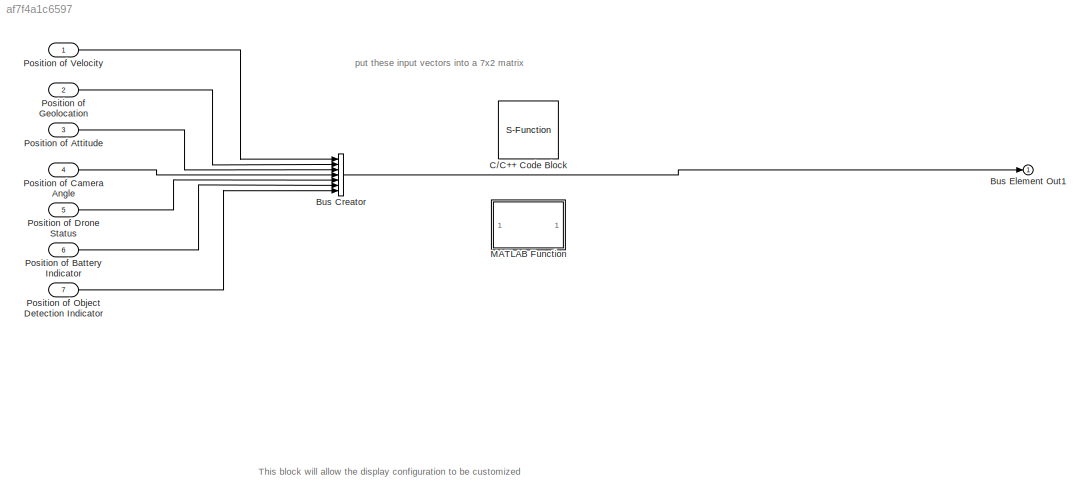
MODEL slx_af7f4a1c6597
KIND model
CONFIG AbsTol = auto
CONFIG EnableMultiTasking = off
CONFIG FixedStep = auto
CONFIG MaxStep = auto
CONFIG MinStep = auto
CONFIG RelTol = 1e-3
CONFIG SampleTimeConstraint = Unconstrained
CONFIG SolverName = VariableStepAuto
CONFIG StartTime = 0.0
CONFIG StopTime = 10.0
BLOCK [BusCreator] Bus Creator
  DisplayOption = bar
  InheritFromInputs = on
  Inputs = 7
  Ports = [7, 1]
BLOCK [Outport] Bus Element Out1
BLOCK [S-Function] C//C++ Code Block
  CopyFcn = set_param(gcbh,'LinkStatus','none')
  EnableBusSupport = off
  FunctionName = ScreenPositions
  OpenFcn = sfunctionwizard(gcbh)
  Ports = [1, 1]
  SFcnIsStateOwnerBlock = off
  SFunctionDeploymentMode = off
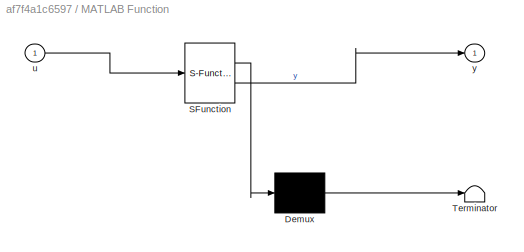
BLOCK [SubSystem] MATLAB Function
  ErrorFcn = Stateflow.Translate.translate
  PermitHierarchicalResolution = ExplicitOnly
  Ports = [1, 1]
  RequestExecContextInheritance = off
  SFBlockType = MATLAB Function
  TreatAsAtomicUnit = on
BLOCK [Demux] MATLAB Function/ Demux 
  Outputs = 1
  Ports = [1, 1]
BLOCK [S-Function] MATLAB Function/ SFunction 
  EnableBusSupport = off
  FunctionName = sf_sfun
  PortCounts = [1 2]
  Ports = [1, 2]
  SFcnIsStateOwnerBlock = off
  SFunctionDeploymentMode = off
  Tag = Stateflow S-Function 2
BLOCK [Terminator] MATLAB Function/ Terminator 
BLOCK [Inport] MATLAB Function/u
BLOCK [Outport] MATLAB Function/y
BLOCK [Inport] Position of Attitude
  OutDataTypeStr = int16
  Port = 3
  PortDimensions = [1 1]
BLOCK [Inport] Position of Battery Indicator
  OutDataTypeStr = int16
  Port = 6
  PortDimensions = [1 1]
BLOCK [Inport] Position of Camera Angle
  OutDataTypeStr = int16
  Port = 4
  PortDimensions = [1 1]
BLOCK [Inport] Position of Drone Status
  OutDataTypeStr = int16
  Port = 5
  PortDimensions = [1 1]
BLOCK [Inport] Position of Geolocation
  OutDataTypeStr = int16
  Port = 2
  PortDimensions = [1 1]
BLOCK [Inport] Position of Object Detection Indicator
  OutDataTypeStr = int16
  Port = 7
  PortDimensions = [1 1]
BLOCK [Inport] Position of Velocity
  OutDataTypeStr = int16
  PortDimensions = [1 1]
ANNOTATION (root): This block will allow the display configuration to be customized
ANNOTATION (root): put these input vectors into a 7x2 matrix
LINE Bus Creator:1 -> Bus Element Out1:1
LINE Position of Attitude:1 -> Bus Creator:3
LINE Position of Battery Indicator:1 -> Bus Creator:6
LINE Position of Camera Angle:1 -> Bus Creator:4
LINE Position of Drone Status:1 -> Bus Creator:5
LINE Position of Geolocation:1 -> Bus Creator:2
LINE Position of Object Detection Indicator:1 -> Bus Creator:7
LINE Position of Velocity:1 -> Bus Creator:1
CHART MATLAB Function states=1 transitions=1
  STATE_LABEL 'eML_blk_kernel()'
  STATE_LABEL 'SCRIPT:\nfunction y = fcn(u)\n\ny = u;\n'
CHART  states=0 transitions=0
